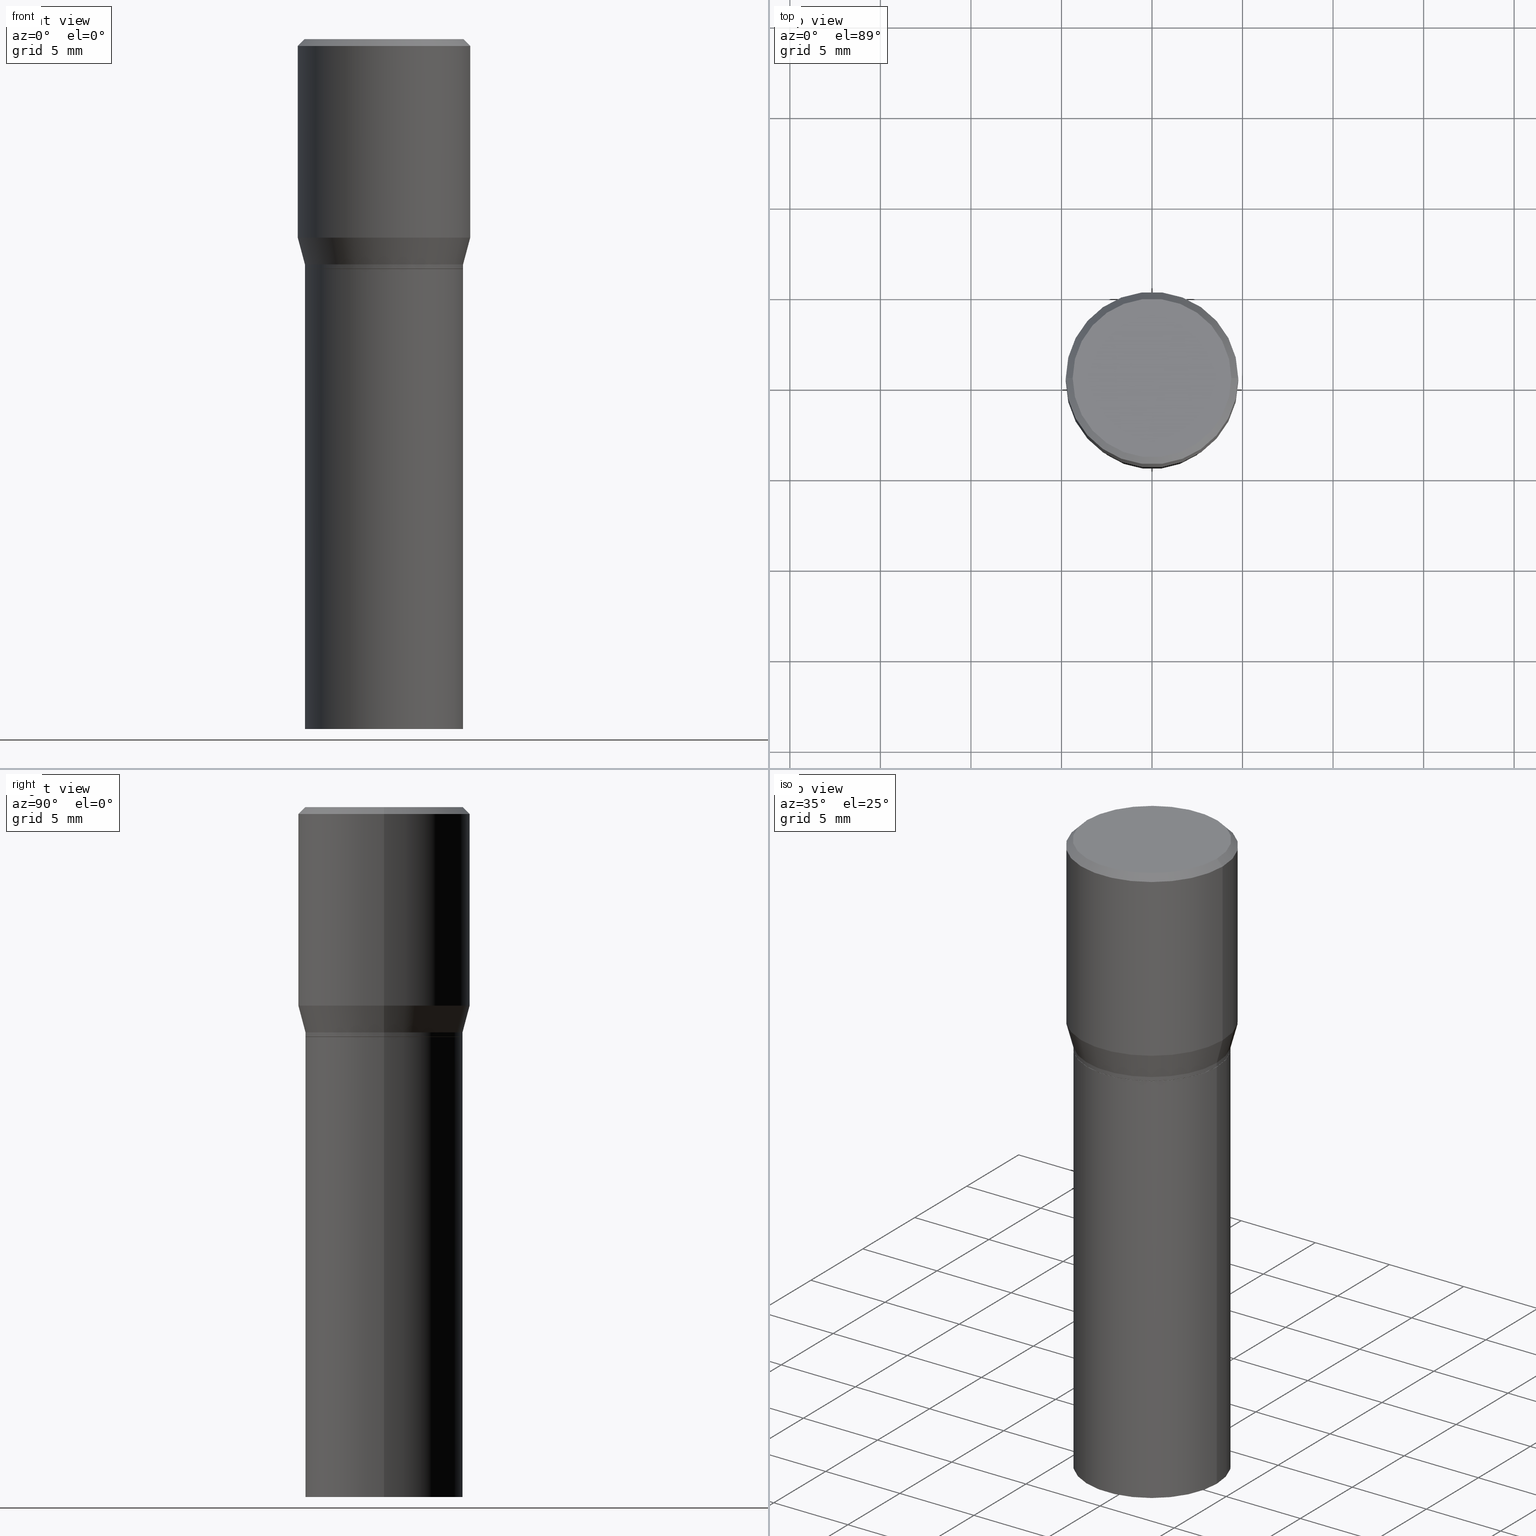
[diagram: canonical four-view strip — front | top / right | iso, engineering-drawing reading convention]
A machine part, canonical four-view strip (front | top / right | iso — engineering-drawing reading convention). The complete STEP part file that produces these views, byte-faithful:
ISO-10303-21;
HEADER;
FILE_DESCRIPTION (( 'STEP AP203' ),
    '1' );
FILE_NAME ('39543.STEP',
    '2024-03-12T19:02:50',
    ( '' ),
    ( '' ),
    'SwSTEP 2.0',
    'SolidWorks 2023',
    '' );
FILE_SCHEMA (( 'CONFIG_CONTROL_DESIGN' ));
ENDSEC;

DATA;
#1 = CIRCLE ( 'NONE', #346, 0.1718999999999999695 ) ;
#2 = CIRCLE ( 'NONE', #375, 0.1718999999999999695 ) ;
#3 = DIRECTION ( 'NONE',  ( -2.445468806185136597E-29, 3.491481338843145583E-15, 1.000000000000000000 ) ) ;
#4 = ORIENTED_EDGE ( 'NONE', *, *, #209, .F. ) ;
#5 = APPROVAL ( #132, 'UNSPECIFIED' ) ;
#6 = PERSON_AND_ORGANIZATION ( #464, #49 ) ;
#7 = CIRCLE ( 'NONE', #262, 0.1718999999999999695 ) ;
#8 = AXIS2_PLACEMENT_3D ( 'NONE', #448, #261, #219 ) ;
#9 = ADVANCED_FACE ( 'NONE', ( #410 ), #377, .F. ) ;
#10 = CALENDAR_DATE ( 2024, 12, 3 ) ;
#11 = VERTEX_POINT ( 'NONE', #236 ) ;
#12 = CARTESIAN_POINT ( 'NONE',  ( -0.1718999999999999695, 1.221422962771612003E-15, -8.455649420148183180E-30 ) ) ;
#13 = ORIENTED_EDGE ( 'NONE', *, *, #345, .T. ) ;
#14 = FACE_OUTER_BOUND ( 'NONE', #204, .T. ) ;
#15 = CARTESIAN_POINT ( 'NONE',  ( 0.1718999999999999695, -2.911197140327410581E-15, -0.4900000000000001021 ) ) ;
#16 = ADVANCED_FACE ( 'NONE', ( #339 ), #203, .F. ) ;
#17 = CIRCLE ( 'NONE', #175, 0.1718999999999999695 ) ;
#18 = DIRECTION ( 'NONE',  ( 1.000000000000000000, -6.982962677686266711E-15, 4.876176775795936353E-29 ) ) ;
#19 = EDGE_CURVE ( 'NONE', #220, #284, #459, .T. ) ;
#20 = CARTESIAN_POINT ( 'NONE',  ( -0.1718999999999999695, 1.221422962771612003E-15, -8.455649420148183180E-30 ) ) ;
#21 = ORIENTED_EDGE ( 'NONE', *, *, #340, .T. ) ;
#22 = FACE_OUTER_BOUND ( 'NONE', #417, .T. ) ;
#23 = ADVANCED_FACE ( 'NONE', ( #196 ), #96, .T. ) ;
#24 = FACE_OUTER_BOUND ( 'NONE', #325, .T. ) ;
#25 = AXIS2_PLACEMENT_3D ( 'NONE', #211, #354, #44 ) ;
#26 = ORIENTED_EDGE ( 'NONE', *, *, #274, .F. ) ;
#27 = ORIENTED_EDGE ( 'NONE', *, *, #28, .F. ) ;
#28 = EDGE_CURVE ( 'NONE', #284, #323, #264, .T. ) ;
#29 = CARTESIAN_POINT ( 'NONE',  ( 1.222734403092568719E-29, -1.745740669421573186E-15, -0.5000000000000001110 ) ) ;
#30 = DIRECTION ( 'NONE',  ( 1.000000000000000000, -6.982962677686265922E-15, 4.876176775795935793E-29 ) ) ;
#31 = CARTESIAN_POINT ( 'NONE',  ( 1.222734403092568719E-29, -1.745740669421573186E-15, -0.5000000000000001110 ) ) ;
#32 = AXIS2_PLACEMENT_3D ( 'NONE', #146, #194, #18 ) ;
#33 = CARTESIAN_POINT ( 'NONE',  ( 6.448077620501702025E-46, -9.206145924434830208E-32, -2.636744989015224123E-17 ) ) ;
#34 = FACE_OUTER_BOUND ( 'NONE', #399, .T. ) ;
#35 = DIRECTION ( 'NONE',  ( -0.7071067811865715536, 7.493145998870439357E-15, 0.7071067811865232589 ) ) ;
#36 = FACE_OUTER_BOUND ( 'NONE', #76, .T. ) ;
#37 = ORIENTED_EDGE ( 'NONE', *, *, #281, .T. ) ;
#38 = EDGE_CURVE ( 'NONE', #260, #233, #217, .T. ) ;
#39 = AXIS2_PLACEMENT_3D ( 'NONE', #33, #3, #269 ) ;
#40 = AXIS2_PLACEMENT_3D ( 'NONE', #372, #156, #297 ) ;
#41 = ORIENTED_EDGE ( 'NONE', *, *, #83, .T. ) ;
#42 = EDGE_CURVE ( 'NONE', #150, #252, #161, .T. ) ;
#43 = CALENDAR_DATE ( 2024, 12, 3 ) ;
#44 = DIRECTION ( 'NONE',  ( 1.000000000000000000, -6.982962677686266711E-15, 0.000000000000000000 ) ) ;
#45 = CIRCLE ( 'NONE', #40, 0.1718999999999999695 ) ;
#46 = CARTESIAN_POINT ( 'NONE',  ( 0.1718999999999999695, -1.200371284294269044E-15, 8.382147877593213079E-30 ) ) ;
#47 = CIRCLE ( 'NONE', #275, 0.1718999999999999695 ) ;
#48 = CARTESIAN_POINT ( 'NONE',  ( 0.000000000000000000, 0.000000000000000000, 0.000000000000000000 ) ) ;
#49 = ORGANIZATION ( 'UNSPECIFIED', 'UNSPECIFIED', '' ) ;
#50 = CIRCLE ( 'NONE', #208, 0.1875000000000000278 ) ;
#51 = DIRECTION ( 'NONE',  ( 1.000000000000000000, -6.982962677686266711E-15, 0.000000000000000000 ) ) ;
#52 = ADVANCED_FACE ( 'NONE', ( #34 ), #343, .T. ) ;
#53 = CARTESIAN_POINT ( 'NONE',  ( 1.222734403092568719E-29, -1.745740669421573186E-15, -0.5000000000000001110 ) ) ;
#54 = EDGE_LOOP ( 'NONE', ( #389, #360, #41, #370 ) ) ;
#55 = EDGE_CURVE ( 'NONE', #233, #293, #337, .T. ) ;
#56 = ORIENTED_EDGE ( 'NONE', *, *, #257, .T. ) ;
#57 = DIRECTION ( 'NONE',  ( -2.445468806185136597E-29, 3.491481338843145583E-15, 1.000000000000000000 ) ) ;
#58 = LENGTH_MEASURE_WITH_UNIT ( LENGTH_MEASURE( 0.02539999999999999897 ), #198 );
#59 = DIRECTION ( 'NONE',  ( 1.000000000000000000, -6.982962677686266711E-15, 4.876176775795936353E-29 ) ) ;
#60 = AXIS2_PLACEMENT_3D ( 'NONE', #258, #82, #59 ) ;
#61 = CARTESIAN_POINT ( 'NONE',  ( -0.1718999999999999695, -5.225719659805397780E-16, -0.4995000000000001661 ) ) ;
#62 = DIRECTION ( 'NONE',  ( -2.445468806185136877E-29, 3.491481338843145188E-15, 1.000000000000000000 ) ) ;
#63 = CYLINDRICAL_SURFACE ( 'NONE', #192, 0.1718999999999999695 ) ;
#64 = DIRECTION ( 'NONE',  ( 1.000000000000000000, -6.982962677686265922E-15, 0.000000000000000000 ) ) ;
#65 = DIRECTION ( 'NONE',  ( 1.000000000000000000, -6.982962677686266711E-15, 0.000000000000000000 ) ) ;
#66 = DATE_AND_TIME ( #72, #421 ) ;
#67 = ORIENTED_EDGE ( 'NONE', *, *, #209, .T. ) ;
#68 = CONICAL_SURFACE ( 'NONE', #202, 0.1713999999999999690, 0.7853981633974824739 ) ;
#69 = DIRECTION ( 'NONE',  ( 1.000000000000000000, -6.982962677686265922E-15, 0.000000000000000000 ) ) ;
#70 = ORIENTED_EDGE ( 'NONE', *, *, #283, .F. ) ;
#71 = CARTESIAN_POINT ( 'NONE',  ( 1.055904539235796751E-29, -1.507551838329378850E-15, -0.4317800074019257361 ) ) ;
#72 = CALENDAR_DATE ( 2024, 12, 3 ) ;
#73 = ORIENTED_EDGE ( 'NONE', *, *, #159, .F. ) ;
#74 = EDGE_LOOP ( 'NONE', ( #188, #67 ) ) ;
#75 = EDGE_CURVE ( 'NONE', #11, #133, #47, .T. ) ;
#76 = EDGE_LOOP ( 'NONE', ( #145, #460 ) ) ;
#77 = CARTESIAN_POINT ( 'NONE',  ( 0.1718999999999999695, -2.946111953715842230E-15, -0.5000000000000001110 ) ) ;
#78 = DATE_TIME_ROLE ( 'classification_date' ) ;
#79 = CARTESIAN_POINT ( 'NONE',  ( -0.1725000000000000144, 1.230747171942204192E-15, -2.636744989016075847E-17 ) ) ;
#80 = DIRECTION ( 'NONE',  ( 0.2588190451025216277, 1.565188264969619995E-15, 0.9659258262890679791 ) ) ;
#81 = EDGE_CURVE ( 'NONE', #150, #133, #93, .T. ) ;
#82 = DIRECTION ( 'NONE',  ( -2.445468806185136597E-29, 3.491481338843145583E-15, 1.000000000000000000 ) ) ;
#83 = EDGE_CURVE ( 'NONE', #252, #11, #234, .T. ) ;
#84 = VECTOR ( 'NONE', #308, 39.37007874015748854 ) ;
#85 = DIRECTION ( 'NONE',  ( 1.000000000000000000, -6.982962677686268288E-15, 0.000000000000000000 ) ) ;
#86 = CARTESIAN_POINT ( 'NONE',  ( 3.668203209277704895E-29, -5.237222008264718177E-15, -1.500000000000000222 ) ) ;
#87 = DIRECTION ( 'NONE',  ( -2.445468806185136597E-29, 3.491481338843145583E-15, 1.000000000000000000 ) ) ;
#88 = VECTOR ( 'NONE', #380, 39.37007874015748143 ) ;
#89 = DIRECTION ( 'NONE',  ( 1.000000000000000000, -6.982962677686266711E-15, 0.000000000000000000 ) ) ;
#90 = VECTOR ( 'NONE', #158, 39.37007874015748143 ) ;
#91 = CARTESIAN_POINT ( 'NONE',  ( 3.576687321579069994E-29, -5.368277968210015545E-15, -1.500000000000000222 ) ) ;
#92 = ORIENTED_EDGE ( 'NONE', *, *, #257, .F. ) ;
#93 = LINE ( 'NONE', #305, #282 ) ;
#94 = APPROVAL_ROLE ( '' ) ;
#95 = DIRECTION ( 'NONE',  ( 1.000000000000000000, -6.982962677686266711E-15, 0.000000000000000000 ) ) ;
#96 = CONICAL_SURFACE ( 'NONE', #429, 0.1713999999999999690, 0.7853981633974824739 ) ;
#97 = PRODUCT_DEFINITION_FORMATION_WITH_SPECIFIED_SOURCE ( 'ANY', '', #165, .NOT_KNOWN. ) ;
#98 = EDGE_CURVE ( 'NONE', #220, #310, #335, .T. ) ;
#99 = DIRECTION ( 'NONE',  ( -2.445468806185136597E-29, 3.491481338843145583E-15, 1.000000000000000000 ) ) ;
#100 = COORDINATED_UNIVERSAL_TIME_OFFSET ( 5, 0, .BEHIND. ) ;
#101 = DIRECTION ( 'NONE',  ( 0.000000000000000000, 0.000000000000000000, 1.000000000000000000 ) ) ;
#102 = EDGE_CURVE ( 'NONE', #310, #220, #1, .T. ) ;
#103 = CARTESIAN_POINT ( 'NONE',  ( 1.198279715030717173E-29, -1.710825856033141537E-15, -0.4900000000000001021 ) ) ;
#104 = AXIS2_PLACEMENT_3D ( 'NONE', #218, #143, #315 ) ;
#105 = CARTESIAN_POINT ( 'NONE',  ( 0.1725000000000000144, -1.261075749640199308E-15, -2.636744989014362231E-17 ) ) ;
#106 = DIRECTION ( 'NONE',  ( 1.000000000000000000, -6.982962677686265922E-15, 0.000000000000000000 ) ) ;
#107 = CARTESIAN_POINT ( 'NONE',  ( 0.1713999999999999690, -2.942620472376999223E-15, -0.5000000000000001110 ) ) ;
#108 = DIRECTION ( 'NONE',  ( 1.000000000000000000, -6.982962677686265922E-15, 4.876176775795935793E-29 ) ) ;
#109 = LINE ( 'NONE', #250, #182 ) ;
#110 = EDGE_CURVE ( 'NONE', #233, #260, #135, .T. ) ;
#111 = CARTESIAN_POINT ( 'NONE',  ( 1.222734403092568719E-29, -1.745740669421573186E-15, -0.5000000000000001110 ) ) ;
#112 =( CONVERSION_BASED_UNIT ( 'INCH', #58 ) LENGTH_UNIT ( ) NAMED_UNIT ( #240 ) );
#113 = CC_DESIGN_APPROVAL ( #306, ( #287 ) ) ;
#114 = ORIENTED_EDGE ( 'NONE', *, *, #28, .T. ) ;
#115 = DIRECTION ( 'NONE',  ( -2.445468806185136597E-29, 3.491481338843145583E-15, 1.000000000000000000 ) ) ;
#116 = DIRECTION ( 'NONE',  ( -2.445468806185136597E-29, 3.491481338843145583E-15, 1.000000000000000000 ) ) ;
#117 = ORIENTED_EDGE ( 'NONE', *, *, #98, .F. ) ;
#118 = DIRECTION ( 'NONE',  ( 1.000000000000000000, -6.982962677686265922E-15, 0.000000000000000000 ) ) ;
#119 = DIRECTION ( 'NONE',  ( 0.7071067811865483499, -7.319954787623257623E-15, -0.7071067811865466846 ) ) ;
#120 = AXIS2_PLACEMENT_3D ( 'NONE', #166, #453, #414 ) ;
#121 = DIRECTION ( 'NONE',  ( 1.000000000000000000, -6.982962677686265922E-15, 4.876176775795935793E-29 ) ) ;
#122 = VERTEX_POINT ( 'NONE', #418 ) ;
#123 = MANIFOLD_SOLID_BREP ( 'Body-Move/Copy2[2]', #167 ) ;
#124 = DIRECTION ( 'NONE',  ( -2.445468806185136597E-29, 3.491481338843145583E-15, 1.000000000000000000 ) ) ;
#125 = CARTESIAN_POINT ( 'NONE',  ( 1.198279715030717173E-29, -1.710825856033141537E-15, -0.4900000000000001021 ) ) ;
#126 = CIRCLE ( 'NONE', #407, 0.1875000000000000278 ) ;
#127 = MANIFOLD_SOLID_BREP ( 'Body-Move/Copy2[1]', #374 ) ;
#128 = CALENDAR_DATE ( 2024, 12, 3 ) ;
#129 = APPROVAL_STATUS ( 'not_yet_approved' ) ;
#130 = EDGE_CURVE ( 'NONE', #284, #350, #289, .T. ) ;
#131 = APPROVAL_DATE_TIME ( #137, #5 ) ;
#132 = APPROVAL_STATUS ( 'not_yet_approved' ) ;
#133 = VERTEX_POINT ( 'NONE', #61 ) ;
#134 = CARTESIAN_POINT ( 'NONE',  ( 3.668203209277704895E-29, -5.237222008264718177E-15, -1.500000000000000222 ) ) ;
#135 = CIRCLE ( 'NONE', #141, 0.1725000000000000144 ) ;
#136 = CIRCLE ( 'NONE', #25, 0.1713999999999999690 ) ;
#137 = DATE_AND_TIME ( #128, #422 ) ;
#138 = DATE_TIME_ROLE ( 'creation_date' ) ;
#139 = CARTESIAN_POINT ( 'NONE',  ( 3.668203209277705088E-31, -5.237222008264718399E-17, -0.01499999999999999944 ) ) ;
#140 = ORIENTED_EDGE ( 'NONE', *, *, #283, .T. ) ;
#141 = AXIS2_PLACEMENT_3D ( 'NONE', #465, #99, #239 ) ;
#142 = VECTOR ( 'NONE', #397, 39.37007874015748143 ) ;
#143 = DIRECTION ( 'NONE',  ( 2.438088387897960049E-29, -3.491481338843145188E-15, -1.000000000000000000 ) ) ;
#144 = CARTESIAN_POINT ( 'NONE',  ( 3.668203209277705088E-31, -5.237222008264718399E-17, -0.01499999999999999944 ) ) ;
#145 = ORIENTED_EDGE ( 'NONE', *, *, #38, .T. ) ;
#146 = CARTESIAN_POINT ( 'NONE',  ( 0.000000000000000000, 0.000000000000000000, 0.000000000000000000 ) ) ;
#147 = APPROVAL_PERSON_ORGANIZATION ( #278, #181, #94 ) ;
#148 = ADVANCED_BREP_SHAPE_REPRESENTATION ( '39543', ( #127, #123, #457 ), #400 ) ;
#149 = DIRECTION ( 'NONE',  ( -2.445468806185136597E-29, 3.491481338843145583E-15, 1.000000000000000000 ) ) ;
#150 = VERTEX_POINT ( 'NONE', #331 ) ;
#151 = PERSON_AND_ORGANIZATION_ROLE ( 'classification_officer' ) ;
#152 = CARTESIAN_POINT ( 'NONE',  ( -0.1875000000000000278, -1.752842087791908777E-16, -0.4317800074019257361 ) ) ;
#153 = EDGE_LOOP ( 'NONE', ( #238, #273, #447, #277 ) ) ;
#154 = CC_DESIGN_PERSON_AND_ORGANIZATION_ASSIGNMENT ( #235, #384, ( #97 ) ) ;
#155 = DIRECTION ( 'NONE',  ( -2.445468806185136597E-29, 3.491481338843145583E-15, 1.000000000000000000 ) ) ;
#156 = DIRECTION ( 'NONE',  ( -2.445468806185136597E-29, 3.491481338843145583E-15, 1.000000000000000000 ) ) ;
#157 = ORIENTED_EDGE ( 'NONE', *, *, #221, .T. ) ;
#158 = DIRECTION ( 'NONE',  ( -2.445468806185136877E-29, 3.491481338843145188E-15, 1.000000000000000000 ) ) ;
#159 = EDGE_CURVE ( 'NONE', #224, #178, #7, .T. ) ;
#160 = DIRECTION ( 'NONE',  ( -2.445468806185136597E-29, 3.491481338843145583E-15, 1.000000000000000000 ) ) ;
#161 = CIRCLE ( 'NONE', #319, 0.1713999999999999690 ) ;
#162 = VECTOR ( 'NONE', #256, 39.37007874015748143 ) ;
#163 = DIRECTION ( 'NONE',  ( 1.000000000000000000, -6.982962677686266711E-15, 0.000000000000000000 ) ) ;
#164 = CARTESIAN_POINT ( 'NONE',  ( -0.1718999999999999695, -4.894028932615295339E-16, -0.4900000000000001021 ) ) ;
#165 = PRODUCT ( '39543', '39543', '', ( #420 ) ) ;
#166 = CARTESIAN_POINT ( 'NONE',  ( 1.200371284294281074E-15, 0.1718999999999982486, -0.5000000000000007772 ) ) ;
#167 = CLOSED_SHELL ( 'NONE', ( #352, #23, #368, #52, #398, #333, #446, #378, #439, #404, #382, #200 ) ) ;
#168 = ORIENTED_EDGE ( 'NONE', *, *, #452, .F. ) ;
#169 = CONICAL_SURFACE ( 'NONE', #276, 0.1875000000000000278, 0.7853981633974495002 ) ;
#170 = EDGE_LOOP ( 'NONE', ( #92, #427 ) ) ;
#171 = PERSON_AND_ORGANIZATION_ROLE ( 'creator' ) ;
#172 = ORIENTED_EDGE ( 'NONE', *, *, #81, .T. ) ;
#173 = LINE ( 'NONE', #313, #142 ) ;
#174 = COORDINATED_UNIVERSAL_TIME_OFFSET ( 5, 0, .BEHIND. ) ;
#175 = AXIS2_PLACEMENT_3D ( 'NONE', #394, #177, #396 ) ;
#176 = CC_DESIGN_PERSON_AND_ORGANIZATION_ASSIGNMENT ( #329, #463, ( #97 ) ) ;
#177 = DIRECTION ( 'NONE',  ( -2.445468806185136597E-29, 3.491481338843145583E-15, 1.000000000000000000 ) ) ;
#178 = VERTEX_POINT ( 'NONE', #201 ) ;
#179 = PERSON_AND_ORGANIZATION ( #464, #49 ) ;
#180 = DIRECTION ( 'NONE',  ( 1.000000000000000000, -6.982962677686266711E-15, 4.876176775795936353E-29 ) ) ;
#181 = APPROVAL ( #424, 'UNSPECIFIED' ) ;
#182 = VECTOR ( 'NONE', #341, 39.37007874015748143 ) ;
#183 = CC_DESIGN_APPROVAL ( #5, ( #266 ) ) ;
#184 = PLANE ( 'NONE',  #327 ) ;
#185 = DIRECTION ( 'NONE',  ( -2.445468806185136597E-29, 3.491481338843145583E-15, 1.000000000000000000 ) ) ;
#186 = ORIENTED_EDGE ( 'NONE', *, *, #214, .T. ) ;
#187 = DIRECTION ( 'NONE',  ( -1.000000000000000000, 6.982962677686265922E-15, 0.000000000000000000 ) ) ;
#188 = ORIENTED_EDGE ( 'NONE', *, *, #159, .T. ) ;
#189 = DIRECTION ( 'NONE',  ( 1.000000000000000000, -6.982962677686265922E-15, 0.000000000000000000 ) ) ;
#190 = VERTEX_POINT ( 'NONE', #438 ) ;
#191 = AXIS2_PLACEMENT_3D ( 'NONE', #125, #124, #383 ) ;
#192 = AXIS2_PLACEMENT_3D ( 'NONE', #402, #351, #180 ) ;
#193 = ORIENTED_EDGE ( 'NONE', *, *, #281, .F. ) ;
#194 = DIRECTION ( 'NONE',  ( -2.445468806185136597E-29, 3.491481338843145583E-15, 1.000000000000000000 ) ) ;
#195 = ORIENTED_EDGE ( 'NONE', *, *, #102, .F. ) ;
#196 = FACE_OUTER_BOUND ( 'NONE', #207, .T. ) ;
#197 = FACE_OUTER_BOUND ( 'NONE', #170, .T. ) ;
#198 =( LENGTH_UNIT ( ) NAMED_UNIT ( * ) SI_UNIT ( $, .METRE. ) );
#199 = DIRECTION ( 'NONE',  ( -2.445468806185136597E-29, 3.491481338843145583E-15, 1.000000000000000000 ) ) ;
#200 = ADVANCED_FACE ( 'NONE', ( #358 ), #63, .T. ) ;
#201 = CARTESIAN_POINT ( 'NONE',  ( -0.1718999999999999695, -2.270058376071533777E-15, -0.5000000000000001110 ) ) ;
#202 = AXIS2_PLACEMENT_3D ( 'NONE', #53, #149, #51 ) ;
#203 = PLANE ( 'NONE',  #120 ) ;
#204 = EDGE_LOOP ( 'NONE', ( #27, #298, #244, #449 ) ) ;
#205 = DIRECTION ( 'NONE',  ( -0.2588190451025216277, 5.211531920934551831E-15, 0.9659258262890679791 ) ) ;
#206 = AXIS2_PLACEMENT_3D ( 'NONE', #71, #242, #69 ) ;
#207 = EDGE_LOOP ( 'NONE', ( #56, #172, #381, #215 ) ) ;
#208 = AXIS2_PLACEMENT_3D ( 'NONE', #144, #367, #189 ) ;
#209 = EDGE_CURVE ( 'NONE', #178, #224, #17, .T. ) ;
#210 = CALENDAR_DATE ( 2024, 12, 3 ) ;
#211 = CARTESIAN_POINT ( 'NONE',  ( 1.222734403092568719E-29, -1.745740669421573186E-15, -0.5000000000000001110 ) ) ;
#212 = PRODUCT_RELATED_PRODUCT_CATEGORY ( 'detail', '', ( #165 ) ) ;
#213 = LINE ( 'NONE', #46, #162 ) ;
#214 = EDGE_CURVE ( 'NONE', #11, #310, #173, .T. ) ;
#215 = ORIENTED_EDGE ( 'NONE', *, *, #83, .F. ) ;
#216 = CARTESIAN_POINT ( 'NONE',  ( 3.668203209277705088E-31, -5.237222008264718399E-17, -0.01499999999999999944 ) ) ;
#217 = CIRCLE ( 'NONE', #39, 0.1725000000000000144 ) ;
#218 = CARTESIAN_POINT ( 'NONE',  ( 1.204561061900881047E-15, 0.1725000000000000144, -6.154642558955188135E-16 ) ) ;
#219 = DIRECTION ( 'NONE',  ( -1.000000000000000000, 6.982962677686265922E-15, 0.000000000000000000 ) ) ;
#220 = VERTEX_POINT ( 'NONE', #317 ) ;
#221 = EDGE_CURVE ( 'NONE', #122, #190, #2, .T. ) ;
#222 = CARTESIAN_POINT ( 'NONE',  ( 1.055904539235796751E-29, -1.507551838329378850E-15, -0.4317800074019257361 ) ) ;
#223 = ORIENTED_EDGE ( 'NONE', *, *, #345, .F. ) ;
#224 = VERTEX_POINT ( 'NONE', #77 ) ;
#225 = CC_DESIGN_DATE_AND_TIME_ASSIGNMENT ( #428, #138, ( #287 ) ) ;
#226 = DIRECTION ( 'NONE',  ( -2.438088387897960049E-29, 3.491481338843145188E-15, 1.000000000000000000 ) ) ;
#227 = EDGE_LOOP ( 'NONE', ( #466, #223 ) ) ;
#228 = VECTOR ( 'NONE', #205, 39.37007874015748143 ) ;
#229 = AXIS2_PLACEMENT_3D ( 'NONE', #288, #87, #89 ) ;
#230 = DIRECTION ( 'NONE',  ( 1.000000000000000000, -6.982962677686266711E-15, 4.876176775795936353E-29 ) ) ;
#231 = DIRECTION ( 'NONE',  ( 1.000000000000000000, 0.000000000000000000, 0.000000000000000000 ) ) ;
#232 = CARTESIAN_POINT ( 'NONE',  ( 1.221511668689476057E-29, -1.743994928752151682E-15, -0.4995000000000001661 ) ) ;
#233 = VERTEX_POINT ( 'NONE', #105 ) ;
#234 = LINE ( 'NONE', #462, #84 ) ;
#235 = PERSON_AND_ORGANIZATION ( #464, #49 ) ;
#236 = CARTESIAN_POINT ( 'NONE',  ( 0.1718999999999999695, -2.944366213046420332E-15, -0.4995000000000001661 ) ) ;
#237 = PERSON_AND_ORGANIZATION ( #464, #49 ) ;
#238 = ORIENTED_EDGE ( 'NONE', *, *, #110, .F. ) ;
#239 = DIRECTION ( 'NONE',  ( 1.000000000000000000, -6.982962677686266711E-15, 4.876912640186324808E-29 ) ) ;
#240 = DIMENSIONAL_EXPONENTS ( 1.000000000000000000, 0.000000000000000000, 0.000000000000000000, 0.000000000000000000, 0.000000000000000000, 0.000000000000000000, 0.000000000000000000 ) ;
#241 = APPROVAL_DATE_TIME ( #66, #181 ) ;
#242 = DIRECTION ( 'NONE',  ( -2.445468806185136597E-29, 3.491481338843145583E-15, 1.000000000000000000 ) ) ;
#243 = SHAPE_DEFINITION_REPRESENTATION ( #461, #148 ) ;
#244 = ORIENTED_EDGE ( 'NONE', *, *, #403, .T. ) ;
#245 = VECTOR ( 'NONE', #436, 39.37007874015748143 ) ;
#246 = ORIENTED_EDGE ( 'NONE', *, *, #265, .F. ) ;
#247 = ORIENTED_EDGE ( 'NONE', *, *, #274, .T. ) ;
#248 = LINE ( 'NONE', #15, #387 ) ;
#249 = CIRCLE ( 'NONE', #412, 0.1718999999999999695 ) ;
#250 = CARTESIAN_POINT ( 'NONE',  ( -0.1875000000000000278, 1.256933281983527732E-15, -0.01499999999999999944 ) ) ;
#251 = APPLICATION_CONTEXT ( 'configuration controlled 3d designs of mechanical parts and assemblies' ) ;
#252 = VERTEX_POINT ( 'NONE', #107 ) ;
#253 = DIRECTION ( 'NONE',  ( 1.000000000000000000, -6.982962677686266711E-15, 0.000000000000000000 ) ) ;
#254 = AXIS2_PLACEMENT_3D ( 'NONE', #48, #185, #108 ) ;
#255 = ORIENTED_EDGE ( 'NONE', *, *, #75, .T. ) ;
#256 = DIRECTION ( 'NONE',  ( -2.445468806185136877E-29, 3.491481338843145188E-15, 1.000000000000000000 ) ) ;
#257 = EDGE_CURVE ( 'NONE', #252, #150, #136, .T. ) ;
#258 = CARTESIAN_POINT ( 'NONE',  ( 0.000000000000000000, 0.000000000000000000, 0.000000000000000000 ) ) ;
#259 = ORIENTED_EDGE ( 'NONE', *, *, #403, .F. ) ;
#260 = VERTEX_POINT ( 'NONE', #79 ) ;
#261 = DIRECTION ( 'NONE',  ( 2.445468806185136597E-29, -3.491481338843145583E-15, -1.000000000000000000 ) ) ;
#262 = AXIS2_PLACEMENT_3D ( 'NONE', #29, #155, #65 ) ;
#263 = CONICAL_SURFACE ( 'NONE', #445, 0.1718999999999999695, 0.2617993877991502960 ) ;
#264 = LINE ( 'NONE', #415, #88 ) ;
#265 = EDGE_CURVE ( 'NONE', #293, #323, #355, .T. ) ;
#266 = SECURITY_CLASSIFICATION ( '', '', #419 ) ;
#267 = ORIENTED_EDGE ( 'NONE', *, *, #435, .T. ) ;
#268 = DIRECTION ( 'NONE',  ( -2.445468806185136597E-29, 3.491481338843145583E-15, 1.000000000000000000 ) ) ;
#269 = DIRECTION ( 'NONE',  ( 1.000000000000000000, -6.982962677686266711E-15, 4.876912640186324808E-29 ) ) ;
#270 = DIRECTION ( 'NONE',  ( -2.438088387897960049E-29, 3.491481338843145188E-15, 1.000000000000000000 ) ) ;
#271 = CONICAL_SURFACE ( 'NONE', #8, 0.1875000000000000278, 0.7853981633974495002 ) ;
#272 = CARTESIAN_POINT ( 'NONE',  ( 0.000000000000000000, 0.000000000000000000, 0.000000000000000000 ) ) ;
#273 = ORIENTED_EDGE ( 'NONE', *, *, #55, .T. ) ;
#274 = EDGE_CURVE ( 'NONE', #133, #220, #279, .T. ) ;
#275 = AXIS2_PLACEMENT_3D ( 'NONE', #232, #268, #64 ) ;
#276 = AXIS2_PLACEMENT_3D ( 'NONE', #216, #285, #187 ) ;
#277 = ORIENTED_EDGE ( 'NONE', *, *, #435, .F. ) ;
#278 = PERSON_AND_ORGANIZATION ( #464, #49 ) ;
#279 = LINE ( 'NONE', #12, #245 ) ;
#280 = DIRECTION ( 'NONE',  ( -2.445468806185136597E-29, 3.491481338843145583E-15, 1.000000000000000000 ) ) ;
#281 = EDGE_CURVE ( 'NONE', #310, #350, #248, .T. ) ;
#282 = VECTOR ( 'NONE', #35, 39.37007874015748854 ) ;
#283 = EDGE_CURVE ( 'NONE', #122, #224, #213, .T. ) ;
#284 = VERTEX_POINT ( 'NONE', #152 ) ;
#285 = DIRECTION ( 'NONE',  ( 2.445468806185136597E-29, -3.491481338843145583E-15, -1.000000000000000000 ) ) ;
#286 = ORIENTED_EDGE ( 'NONE', *, *, #98, .T. ) ;
#287 = PRODUCT_DEFINITION ( 'UNKNOWN', '', #97, #364 ) ;
#288 = CARTESIAN_POINT ( 'NONE',  ( 1.198279715030717173E-29, -1.710825856033141537E-15, -0.4900000000000001021 ) ) ;
#289 = CIRCLE ( 'NONE', #206, 0.1875000000000000278 ) ;
#290 = LOCAL_TIME ( 15, 2, 50.00000000000000000, #353 ) ;
#291 = DIRECTION ( 'NONE',  ( -2.445468806185136597E-29, 3.491481338843145583E-15, 1.000000000000000000 ) ) ;
#292 = EDGE_LOOP ( 'NONE', ( #157, #314, #73, #70 ) ) ;
#293 = VERTEX_POINT ( 'NONE', #295 ) ;
#294 = COORDINATED_UNIVERSAL_TIME_OFFSET ( 5, 0, .BEHIND. ) ;
#295 = CARTESIAN_POINT ( 'NONE',  ( 0.1875000000000000278, -1.361677722148822285E-15, -0.01499999999999999944 ) ) ;
#296 = CARTESIAN_POINT ( 'NONE',  ( 1.222734403092568719E-29, -1.745740669421573186E-15, -0.5000000000000001110 ) ) ;
#297 = DIRECTION ( 'NONE',  ( 1.000000000000000000, -6.982962677686265922E-15, 0.000000000000000000 ) ) ;
#298 = ORIENTED_EDGE ( 'NONE', *, *, #130, .T. ) ;
#299 = AXIS2_PLACEMENT_3D ( 'NONE', #91, #270, #121 ) ;
#300 = APPROVAL_PERSON_ORGANIZATION ( #6, #306, #312 ) ;
#301 = VECTOR ( 'NONE', #62, 39.37007874015748143 ) ;
#302 = DIRECTION ( 'NONE',  ( -2.445468806185136597E-29, 3.491481338843145583E-15, 1.000000000000000000 ) ) ;
#303 = ORIENTED_EDGE ( 'NONE', *, *, #214, .F. ) ;
#304 = DIRECTION ( 'NONE',  ( 1.000000000000000000, -6.982962677686265922E-15, 4.876176775795935793E-29 ) ) ;
#305 = CARTESIAN_POINT ( 'NONE',  ( -0.1713999999999999690, -5.278704203287616871E-16, -0.5000000000000001110 ) ) ;
#306 = APPROVAL ( #129, 'UNSPECIFIED' ) ;
#307 = ORIENTED_EDGE ( 'NONE', *, *, #340, .F. ) ;
#308 = DIRECTION ( 'NONE',  ( 0.7071067811865715536, -2.468850131082509496E-15, 0.7071067811865232589 ) ) ;
#309 = AXIS2_PLACEMENT_3D ( 'NONE', #139, #280, #106 ) ;
#310 = VERTEX_POINT ( 'NONE', #371 ) ;
#311 = CC_DESIGN_PERSON_AND_ORGANIZATION_ASSIGNMENT ( #179, #316, ( #165 ) ) ;
#312 = APPROVAL_ROLE ( '' ) ;
#313 = CARTESIAN_POINT ( 'NONE',  ( 0.1718999999999999695, -1.200371284294269044E-15, 8.382147877593213079E-30 ) ) ;
#314 = ORIENTED_EDGE ( 'NONE', *, *, #452, .T. ) ;
#315 = DIRECTION ( 'NONE',  ( -1.000000000000000000, 6.982962677686265922E-15, -4.876176775795935793E-29 ) ) ;
#316 = PERSON_AND_ORGANIZATION_ROLE ( 'design_owner' ) ;
#317 = CARTESIAN_POINT ( 'NONE',  ( -0.1718999999999999695, -3.323435510203601689E-16, -0.4900000000000001021 ) ) ;
#318 = CC_DESIGN_PERSON_AND_ORGANIZATION_ASSIGNMENT ( #237, #151, ( #266 ) ) ;
#319 = AXIS2_PLACEMENT_3D ( 'NONE', #296, #388, #163 ) ;
#320 = FACE_OUTER_BOUND ( 'NONE', #292, .T. ) ;
#321 = CC_DESIGN_DATE_AND_TIME_ASSIGNMENT ( #426, #78, ( #266 ) ) ;
#322 = LINE ( 'NONE', #20, #90 ) ;
#323 = VERTEX_POINT ( 'NONE', #444 ) ;
#324 = CYLINDRICAL_SURFACE ( 'NONE', #336, 0.1718999999999999695 ) ;
#325 = EDGE_LOOP ( 'NONE', ( #255, #247, #195, #303 ) ) ;
#326 = CARTESIAN_POINT ( 'NONE',  ( 0.000000000000000000, 0.000000000000000000, 0.000000000000000000 ) ) ;
#327 = AXIS2_PLACEMENT_3D ( 'NONE', #111, #226, #30 ) ;
#328 = CC_DESIGN_APPROVAL ( #181, ( #97 ) ) ;
#329 = PERSON_AND_ORGANIZATION ( #464, #49 ) ;
#330 = LINE ( 'NONE', #406, #301 ) ;
#331 = CARTESIAN_POINT ( 'NONE',  ( -0.1713999999999999690, -5.252211931546505847E-16, -0.5000000000000001110 ) ) ;
#332 = FACE_OUTER_BOUND ( 'NONE', #153, .T. ) ;
#333 = ADVANCED_FACE ( 'NONE', ( #441 ), #263, .T. ) ;
#334 = DIRECTION ( 'NONE',  ( 1.000000000000000000, -6.982962677686266711E-15, 0.000000000000000000 ) ) ;
#335 = CIRCLE ( 'NONE', #191, 0.1718999999999999695 ) ;
#336 = AXIS2_PLACEMENT_3D ( 'NONE', #326, #116, #230 ) ;
#337 = LINE ( 'NONE', #423, #454 ) ;
#338 =( NAMED_UNIT ( * ) SI_UNIT ( $, .STERADIAN. ) SOLID_ANGLE_UNIT ( ) );
#339 = FACE_OUTER_BOUND ( 'NONE', #74, .T. ) ;
#340 = EDGE_CURVE ( 'NONE', #350, #284, #126, .T. ) ;
#341 = DIRECTION ( 'NONE',  ( -0.7071067811865483499, 2.468850131082265738E-15, -0.7071067811865466846 ) ) ;
#342 = ORIENTED_EDGE ( 'NONE', *, *, #38, .F. ) ;
#343 = CYLINDRICAL_SURFACE ( 'NONE', #456, 0.1875000000000000278 ) ;
#344 = ORIENTED_EDGE ( 'NONE', *, *, #363, .T. ) ;
#345 = EDGE_CURVE ( 'NONE', #190, #122, #249, .T. ) ;
#346 = AXIS2_PLACEMENT_3D ( 'NONE', #103, #199, #334 ) ;
#347 = APPROVAL_ROLE ( '' ) ;
#348 = EDGE_LOOP ( 'NONE', ( #168, #13, #140, #4 ) ) ;
#349 = APPLICATION_PROTOCOL_DEFINITION ( 'international standard', 'config_control_design', 1994, #251 ) ;
#350 = VERTEX_POINT ( 'NONE', #361 ) ;
#351 = DIRECTION ( 'NONE',  ( -2.445468806185136597E-29, 3.491481338843145583E-15, 1.000000000000000000 ) ) ;
#352 = ADVANCED_FACE ( 'NONE', ( #24 ), #405, .T. ) ;
#353 = COORDINATED_UNIVERSAL_TIME_OFFSET ( 5, 0, .BEHIND. ) ;
#354 = DIRECTION ( 'NONE',  ( -2.445468806185136597E-29, 3.491481338843145583E-15, 1.000000000000000000 ) ) ;
#355 = CIRCLE ( 'NONE', #309, 0.1875000000000000278 ) ;
#356 = CC_DESIGN_PERSON_AND_ORGANIZATION_ASSIGNMENT ( #391, #171, ( #287 ) ) ;
#357 = DIRECTION ( 'NONE',  ( -2.445468806185136597E-29, 3.491481338843145583E-15, 1.000000000000000000 ) ) ;
#358 = FACE_OUTER_BOUND ( 'NONE', #393, .T. ) ;
#359 = ADVANCED_FACE ( 'NONE', ( #320 ), #409, .T. ) ;
#360 = ORIENTED_EDGE ( 'NONE', *, *, #42, .T. ) ;
#361 = CARTESIAN_POINT ( 'NONE',  ( 0.1875000000000000278, -2.816857340395553661E-15, -0.4317800074019257361 ) ) ;
#362 = LOCAL_TIME ( 15, 2, 50.00000000000000000, #425 ) ;
#363 = EDGE_CURVE ( 'NONE', #323, #293, #50, .T. ) ;
#364 = DESIGN_CONTEXT ( 'detailed design', #251, 'design' ) ;
#365 = CYLINDRICAL_SURFACE ( 'NONE', #254, 0.1875000000000000278 ) ;
#366 = EDGE_LOOP ( 'NONE', ( #373, #286, #37, #443 ) ) ;
#367 = DIRECTION ( 'NONE',  ( -2.445468806185136597E-29, 3.491481338843145583E-15, 1.000000000000000000 ) ) ;
#368 = ADVANCED_FACE ( 'NONE', ( #332 ), #169, .T. ) ;
#369 = PLANE ( 'NONE',  #104 ) ;
#370 = ORIENTED_EDGE ( 'NONE', *, *, #416, .F. ) ;
#371 = CARTESIAN_POINT ( 'NONE',  ( 0.1718999999999999695, -2.911197140327410581E-15, -0.4900000000000001021 ) ) ;
#372 = CARTESIAN_POINT ( 'NONE',  ( 1.221511668689476057E-29, -1.743994928752151682E-15, -0.4995000000000001661 ) ) ;
#373 = ORIENTED_EDGE ( 'NONE', *, *, #19, .F. ) ;
#374 = CLOSED_SHELL ( 'NONE', ( #359, #9, #386, #16 ) ) ;
#375 = AXIS2_PLACEMENT_3D ( 'NONE', #134, #357, #431 ) ;
#376 = LOCAL_TIME ( 15, 2, 50.00000000000000000, #294 ) ;
#377 = PLANE ( 'NONE',  #299 ) ;
#378 = ADVANCED_FACE ( 'NONE', ( #408 ), #271, .T. ) ;
#379 = FACE_OUTER_BOUND ( 'NONE', #348, .T. ) ;
#380 = DIRECTION ( 'NONE',  ( -2.445468806185136877E-29, 3.491481338843145188E-15, 1.000000000000000000 ) ) ;
#381 = ORIENTED_EDGE ( 'NONE', *, *, #75, .F. ) ;
#382 = ADVANCED_FACE ( 'NONE', ( #411 ), #68, .T. ) ;
#383 = DIRECTION ( 'NONE',  ( 1.000000000000000000, -6.982962677686266711E-15, 0.000000000000000000 ) ) ;
#384 = PERSON_AND_ORGANIZATION_ROLE ( 'creator' ) ;
#385 =( NAMED_UNIT ( * ) PLANE_ANGLE_UNIT ( ) SI_UNIT ( $, .RADIAN. ) );
#386 = ADVANCED_FACE ( 'NONE', ( #379 ), #324, .T. ) ;
#387 = VECTOR ( 'NONE', #80, 39.37007874015748143 ) ;
#388 = DIRECTION ( 'NONE',  ( -2.445468806185136597E-29, 3.491481338843145583E-15, 1.000000000000000000 ) ) ;
#389 = ORIENTED_EDGE ( 'NONE', *, *, #81, .F. ) ;
#390 = CARTESIAN_POINT ( 'NONE',  ( 0.000000000000000000, 0.000000000000000000, 0.000000000000000000 ) ) ;
#391 = PERSON_AND_ORGANIZATION ( #464, #49 ) ;
#392 = PERSON_AND_ORGANIZATION ( #464, #49 ) ;
#393 = EDGE_LOOP ( 'NONE', ( #26, #433, #186, #117 ) ) ;
#394 = CARTESIAN_POINT ( 'NONE',  ( 1.222734403092568719E-29, -1.745740669421573186E-15, -0.5000000000000001110 ) ) ;
#395 = DATE_AND_TIME ( #10, #362 ) ;
#396 = DIRECTION ( 'NONE',  ( 1.000000000000000000, -6.982962677686266711E-15, 0.000000000000000000 ) ) ;
#397 = DIRECTION ( 'NONE',  ( -2.445468806185136877E-29, 3.491481338843145188E-15, 1.000000000000000000 ) ) ;
#398 = ADVANCED_FACE ( 'NONE', ( #22 ), #437, .T. ) ;
#399 = EDGE_LOOP ( 'NONE', ( #21, #114, #246, #259 ) ) ;
#400 =( GEOMETRIC_REPRESENTATION_CONTEXT ( 3 ) GLOBAL_UNCERTAINTY_ASSIGNED_CONTEXT ( ( #440 ) ) GLOBAL_UNIT_ASSIGNED_CONTEXT ( ( #112, #385, #338 ) ) REPRESENTATION_CONTEXT ( 'NONE', 'WORKASPACE' ) );
#401 = ORIENTED_EDGE ( 'NONE', *, *, #102, .T. ) ;
#402 = CARTESIAN_POINT ( 'NONE',  ( 0.000000000000000000, 0.000000000000000000, 0.000000000000000000 ) ) ;
#403 = EDGE_CURVE ( 'NONE', #350, #293, #330, .T. ) ;
#404 = ADVANCED_FACE ( 'NONE', ( #197 ), #184, .F. ) ;
#405 = CYLINDRICAL_SURFACE ( 'NONE', #60, 0.1718999999999999695 ) ;
#406 = CARTESIAN_POINT ( 'NONE',  ( 0.1875000000000000278, -1.309305502066175008E-15, 9.142831454617381013E-30 ) ) ;
#407 = AXIS2_PLACEMENT_3D ( 'NONE', #222, #291, #118 ) ;
#408 = FACE_OUTER_BOUND ( 'NONE', #451, .T. ) ;
#409 = CYLINDRICAL_SURFACE ( 'NONE', #32, 0.1718999999999999695 ) ;
#410 = FACE_OUTER_BOUND ( 'NONE', #227, .T. ) ;
#411 = FACE_OUTER_BOUND ( 'NONE', #54, .T. ) ;
#412 = AXIS2_PLACEMENT_3D ( 'NONE', #86, #115, #85 ) ;
#413 = APPROVAL_PERSON_ORGANIZATION ( #392, #5, #347 ) ;
#414 = DIRECTION ( 'NONE',  ( -1.000000000000000000, 6.982962677686265922E-15, -4.876176775795935793E-29 ) ) ;
#415 = CARTESIAN_POINT ( 'NONE',  ( -0.1875000000000000278, 1.332267629550188046E-15, -9.223003294227947991E-30 ) ) ;
#416 = EDGE_CURVE ( 'NONE', #133, #11, #45, .T. ) ;
#417 = EDGE_LOOP ( 'NONE', ( #401, #442, #307, #193 ) ) ;
#418 = CARTESIAN_POINT ( 'NONE',  ( 0.1718999999999999695, -6.437593292558987418E-15, -1.500000000000000222 ) ) ;
#419 = SECURITY_CLASSIFICATION_LEVEL ( 'unclassified' ) ;
#420 = MECHANICAL_CONTEXT ( 'NONE', #432, 'mechanical' ) ;
#421 = LOCAL_TIME ( 15, 2, 50.00000000000000000, #100 ) ;
#422 = LOCAL_TIME ( 15, 2, 50.00000000000000000, #174 ) ;
#423 = CARTESIAN_POINT ( 'NONE',  ( 0.1875000000000000278, -1.338715594664809642E-15, -0.01499999999999999944 ) ) ;
#424 = APPROVAL_STATUS ( 'not_yet_approved' ) ;
#425 = COORDINATED_UNIVERSAL_TIME_OFFSET ( 5, 0, .BEHIND. ) ;
#426 = DATE_AND_TIME ( #210, #376 ) ;
#427 = ORIENTED_EDGE ( 'NONE', *, *, #42, .F. ) ;
#428 = DATE_AND_TIME ( #43, #290 ) ;
#429 = AXIS2_PLACEMENT_3D ( 'NONE', #31, #160, #95 ) ;
#430 = ORIENTED_EDGE ( 'NONE', *, *, #55, .F. ) ;
#431 = DIRECTION ( 'NONE',  ( 1.000000000000000000, -6.982962677686268288E-15, 0.000000000000000000 ) ) ;
#432 = APPLICATION_CONTEXT ( 'configuration controlled 3d designs of mechanical parts and assemblies' ) ;
#433 = ORIENTED_EDGE ( 'NONE', *, *, #416, .T. ) ;
#434 = APPROVAL_DATE_TIME ( #395, #306 ) ;
#435 = EDGE_CURVE ( 'NONE', #260, #323, #109, .T. ) ;
#436 = DIRECTION ( 'NONE',  ( -2.445468806185136877E-29, 3.491481338843145188E-15, 1.000000000000000000 ) ) ;
#437 = CONICAL_SURFACE ( 'NONE', #229, 0.1718999999999999695, 0.2617993877991502960 ) ;
#438 = CARTESIAN_POINT ( 'NONE',  ( -0.1718999999999999695, -2.270058376071533777E-15, -1.500000000000000222 ) ) ;
#439 = ADVANCED_FACE ( 'NONE', ( #36 ), #369, .F. ) ;
#440 = UNCERTAINTY_MEASURE_WITH_UNIT (LENGTH_MEASURE( 1.000000000000000082E-05 ), #112, 'distance_accuracy_value', 'NONE');
#441 = FACE_OUTER_BOUND ( 'NONE', #366, .T. ) ;
#442 = ORIENTED_EDGE ( 'NONE', *, *, #19, .T. ) ;
#443 = ORIENTED_EDGE ( 'NONE', *, *, #130, .F. ) ;
#444 = CARTESIAN_POINT ( 'NONE',  ( -0.1875000000000000278, 5.523056003441748841E-16, -0.01499999999999999944 ) ) ;
#445 = AXIS2_PLACEMENT_3D ( 'NONE', #450, #57, #253 ) ;
#446 = ADVANCED_FACE ( 'NONE', ( #14 ), #365, .T. ) ;
#447 = ORIENTED_EDGE ( 'NONE', *, *, #265, .T. ) ;
#448 = CARTESIAN_POINT ( 'NONE',  ( 3.668203209277705088E-31, -5.237222008264718399E-17, -0.01499999999999999944 ) ) ;
#449 = ORIENTED_EDGE ( 'NONE', *, *, #363, .F. ) ;
#450 = CARTESIAN_POINT ( 'NONE',  ( 1.198279715030717173E-29, -1.710825856033141537E-15, -0.4900000000000001021 ) ) ;
#451 = EDGE_LOOP ( 'NONE', ( #430, #342, #267, #344 ) ) ;
#452 = EDGE_CURVE ( 'NONE', #190, #178, #322, .T. ) ;
#453 = DIRECTION ( 'NONE',  ( 2.438088387897960049E-29, -3.491481338843145188E-15, -1.000000000000000000 ) ) ;
#454 = VECTOR ( 'NONE', #119, 39.37007874015748143 ) ;
#455 = APPLICATION_PROTOCOL_DEFINITION ( 'international standard', 'config_control_design', 1994, #432 ) ;
#456 = AXIS2_PLACEMENT_3D ( 'NONE', #390, #302, #304 ) ;
#457 = AXIS2_PLACEMENT_3D ( 'NONE', #272, #101, #231 ) ;
#458 = CC_DESIGN_SECURITY_CLASSIFICATION ( #266, ( #97 ) ) ;
#459 = LINE ( 'NONE', #164, #228 ) ;
#460 = ORIENTED_EDGE ( 'NONE', *, *, #110, .T. ) ;
#461 = PRODUCT_DEFINITION_SHAPE ( 'NONE', 'NONE',  #287 ) ;
#462 = CARTESIAN_POINT ( 'NONE',  ( 0.1713999999999999690, -2.942620472376999223E-15, -0.5000000000000001110 ) ) ;
#463 = PERSON_AND_ORGANIZATION_ROLE ( 'design_supplier' ) ;
#464 = PERSON ( 'UNSPECIFIED', 'UNSPECIFIED', 'UNSPECIFIED', ('UNSPECIFIED'), ('UNSPECIFIED'), ('UNSPECIFIED') ) ;
#465 = CARTESIAN_POINT ( 'NONE',  ( 6.448077620501702025E-46, -9.206145924434830208E-32, -2.636744989015224123E-17 ) ) ;
#466 = ORIENTED_EDGE ( 'NONE', *, *, #221, .F. ) ;
ENDSEC;
END-ISO-10303-21;
